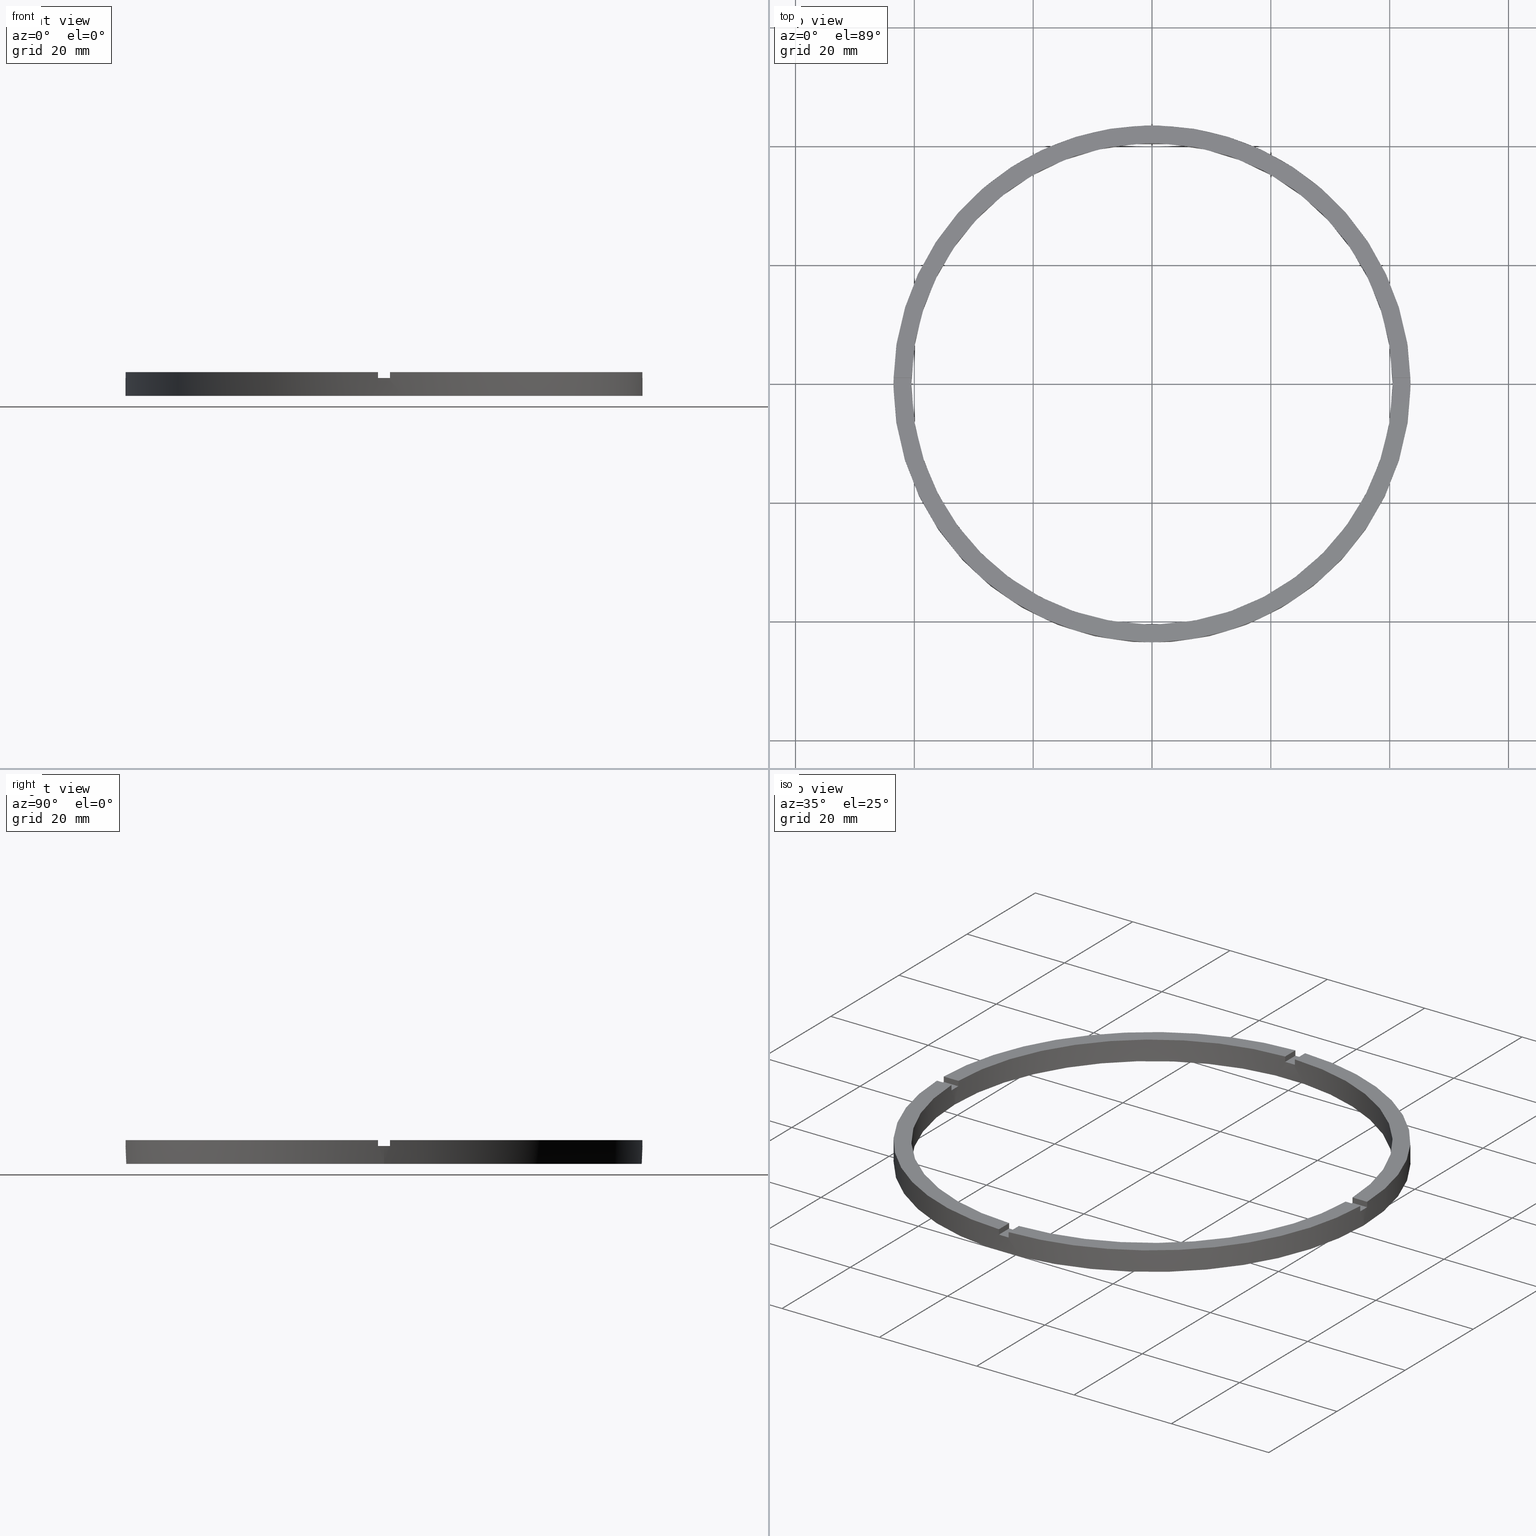
[diagram: canonical four-view strip — front | top / right | iso, engineering-drawing reading convention]
A machine part, canonical four-view strip (front | top / right | iso — engineering-drawing reading convention). The complete STEP part file that produces these views, byte-faithful:
ISO-10303-21;
HEADER;
FILE_DESCRIPTION (( 'STEP AP203' ),
    '1' );
FILE_NAME ('514178.step',
    '2024-12-26T02:45:09',
    ( 'MSI' ),
    ( '' ),
    'SwSTEP 2.0',
    'SolidWorks 2020',
    '' );
FILE_SCHEMA (( 'CONFIG_CONTROL_DESIGN' ));
ENDSEC;

DATA;
#1 = CC_DESIGN_PERSON_AND_ORGANIZATION_ASSIGNMENT ( #723, #753, ( #341 ) ) ;
#2 = VERTEX_POINT ( 'NONE', #589 ) ;
#3 = VERTEX_POINT ( 'NONE', #581 ) ;
#4 = AXIS2_PLACEMENT_3D ( 'NONE', #768, #617, #515 ) ;
#5 = ORIENTED_EDGE ( 'NONE', *, *, #720, .F. ) ;
#6 = AXIS2_PLACEMENT_3D ( 'NONE', #624, #363, #782 ) ;
#7 = ORIENTED_EDGE ( 'NONE', *, *, #412, .F. ) ;
#8 = VECTOR ( 'NONE', #370, 1000.000000000000000 ) ;
#9 = DIRECTION ( 'NONE',  ( -0.000000000000000000, -1.000000000000000000, -0.000000000000000000 ) ) ;
#10 = ORIENTED_EDGE ( 'NONE', *, *, #126, .T. ) ;
#11 = EDGE_LOOP ( 'NONE', ( #730, #518, #684, #202 ) ) ;
#12 = EDGE_CURVE ( 'NONE', #173, #679, #194, .T. ) ;
#13 = LINE ( 'NONE', #79, #299 ) ;
#14 = VECTOR ( 'NONE', #492, 1000.000000000000000 ) ;
#15 = EDGE_CURVE ( 'NONE', #661, #689, #206, .T. ) ;
#16 = DIRECTION ( 'NONE',  ( 0.000000000000000000, 0.000000000000000000, 1.000000000000000000 ) ) ;
#17 = DIRECTION ( 'NONE',  ( 1.000000000000000000, 0.000000000000000000, 0.000000000000000000 ) ) ;
#18 = CIRCLE ( 'NONE', #631, 43.50000000000000000 ) ;
#19 = VECTOR ( 'NONE', #681, 1000.000000000000000 ) ;
#20 = VECTOR ( 'NONE', #368, 1000.000000000000000 ) ;
#21 = PERSON_AND_ORGANIZATION_ROLE ( 'creator' ) ;
#22 = DIRECTION ( 'NONE',  ( 0.000000000000000000, -0.000000000000000000, 1.000000000000000000 ) ) ;
#23 = VECTOR ( 'NONE', #56, 1000.000000000000000 ) ;
#24 = EDGE_CURVE ( 'NONE', #188, #97, #232, .T. ) ;
#25 = DIRECTION ( 'NONE',  ( 0.000000000000000000, 0.000000000000000000, -1.000000000000000000 ) ) ;
#26 = CARTESIAN_POINT ( 'NONE',  ( 0.9999999999998412381, -40.48765243873742037, 3.000000000000000000 ) ) ;
#27 = LINE ( 'NONE', #687, #8 ) ;
#28 = ORIENTED_EDGE ( 'NONE', *, *, #487, .T. ) ;
#29 = CARTESIAN_POINT ( 'NONE',  ( 0.9999999999998404610, -33.50000000000017764, 3.000000000000000000 ) ) ;
#30 = VERTEX_POINT ( 'NONE', #120 ) ;
#31 = PERSON_AND_ORGANIZATION_ROLE ( 'creator' ) ;
#32 = CIRCLE ( 'NONE', #233, 40.50000000000000000 ) ;
#33 = ORIENTED_EDGE ( 'NONE', *, *, #12, .T. ) ;
#34 = CIRCLE ( 'NONE', #379, 43.50000000000000000 ) ;
#35 = CC_DESIGN_APPROVAL ( #208, ( #582 ) ) ;
#36 = CIRCLE ( 'NONE', #268, 40.50000000000000000 ) ;
#37 = ADVANCED_FACE ( 'NONE', ( #486 ), #658, .F. ) ;
#38 = ORIENTED_EDGE ( 'NONE', *, *, #60, .F. ) ;
#39 = LINE ( 'NONE', #609, #563 ) ;
#40 = VECTOR ( 'NONE', #644, 1000.000000000000000 ) ;
#41 = EDGE_LOOP ( 'NONE', ( #697, #53, #254, #594, #614, #590 ) ) ;
#42 = LINE ( 'NONE', #525, #305 ) ;
#43 = CARTESIAN_POINT ( 'NONE',  ( 0.000000000000000000, 0.000000000000000000, 0.000000000000000000 ) ) ;
#44 = LINE ( 'NONE', #709, #389 ) ;
#45 = DIRECTION ( 'NONE',  ( 1.000000000000000000, 0.000000000000000000, 0.000000000000000000 ) ) ;
#46 = LINE ( 'NONE', #583, #545 ) ;
#47 = CARTESIAN_POINT ( 'NONE',  ( 33.49999999999998579, 0.9999999999998430145, 3.000000000000000000 ) ) ;
#48 = FACE_OUTER_BOUND ( 'NONE', #511, .T. ) ;
#49 = ADVANCED_FACE ( 'NONE', ( #224, #227 ), #676, .F. ) ;
#50 = CIRCLE ( 'NONE', #464, 40.50000000000000000 ) ;
#51 = LINE ( 'NONE', #766, #328 ) ;
#52 = VERTEX_POINT ( 'NONE', #214 ) ;
#53 = ORIENTED_EDGE ( 'NONE', *, *, #110, .T. ) ;
#54 = VERTEX_POINT ( 'NONE', #109 ) ;
#55 = LINE ( 'NONE', #92, #71 ) ;
#56 = DIRECTION ( 'NONE',  ( 1.000000000000000000, 1.951563910473907735E-16, -0.000000000000000000 ) ) ;
#57 = CIRCLE ( 'NONE', #101, 40.50000000000000000 ) ;
#58 = PLANE ( 'NONE',  #548 ) ;
#59 = AXIS2_PLACEMENT_3D ( 'NONE', #291, #361, #306 ) ;
#60 = EDGE_CURVE ( 'NONE', #62, #340, #225, .T. ) ;
#61 = DIRECTION ( 'NONE',  ( 1.000000000000000000, 1.951563910473907735E-16, -0.000000000000000000 ) ) ;
#62 = VERTEX_POINT ( 'NONE', #165 ) ;
#63 = AXIS2_PLACEMENT_3D ( 'NONE', #395, #373, #69 ) ;
#64 = VECTOR ( 'NONE', #9, 1000.000000000000000 ) ;
#65 = CARTESIAN_POINT ( 'NONE',  ( 0.000000000000000000, 0.000000000000000000, 3.000000000000000000 ) ) ;
#66 = PRODUCT_DEFINITION_SHAPE ( 'NONE', 'NONE',  #257 ) ;
#67 = LINE ( 'NONE', #185, #319 ) ;
#68 = CARTESIAN_POINT ( 'NONE',  ( 0.9999999999999740208, 33.49999999999999289, 4.000000000000000000 ) ) ;
#69 = DIRECTION ( 'NONE',  ( 1.000000000000000000, 0.000000000000000000, 0.000000000000000000 ) ) ;
#70 = FACE_OUTER_BOUND ( 'NONE', #416, .T. ) ;
#71 = VECTOR ( 'NONE', #250, 1000.000000000000000 ) ;
#72 = EDGE_CURVE ( 'NONE', #157, #3, #228, .T. ) ;
#73 = ORIENTED_EDGE ( 'NONE', *, *, #72, .T. ) ;
#74 = DIRECTION ( 'NONE',  ( 1.000000000000000000, -0.000000000000000000, 0.000000000000000000 ) ) ;
#75 = VERTEX_POINT ( 'NONE', #597 ) ;
#76 = FACE_OUTER_BOUND ( 'NONE', #343, .T. ) ;
#77 = DIRECTION ( 'NONE',  ( 0.000000000000000000, 0.000000000000000000, 1.000000000000000000 ) ) ;
#78 = EDGE_CURVE ( 'NONE', #317, #54, #746, .T. ) ;
#79 = CARTESIAN_POINT ( 'NONE',  ( 33.49999999999998579, 0.9999999999998430145, 4.000000000000000000 ) ) ;
#80 = CARTESIAN_POINT ( 'NONE',  ( 0.000000000000000000, 0.000000000000000000, 4.000000000000000000 ) ) ;
#81 = ORIENTED_EDGE ( 'NONE', *, *, #130, .T. ) ;
#82 = ORIENTED_EDGE ( 'NONE', *, *, #398, .T. ) ;
#83 = EDGE_LOOP ( 'NONE', ( #346, #353, #181, #345 ) ) ;
#84 = VERTEX_POINT ( 'NONE', #111 ) ;
#85 = ORIENTED_EDGE ( 'NONE', *, *, #422, .F. ) ;
#86 = ORIENTED_EDGE ( 'NONE', *, *, #436, .F. ) ;
#87 = EDGE_LOOP ( 'NONE', ( #85, #271, #261, #507 ) ) ;
#88 = ORIENTED_EDGE ( 'NONE', *, *, #110, .F. ) ;
#89 = EDGE_CURVE ( 'NONE', #188, #2, #742, .T. ) ;
#90 = VERTEX_POINT ( 'NONE', #115 ) ;
#91 = ADVANCED_FACE ( 'NONE', ( #744 ), #150, .T. ) ;
#92 = CARTESIAN_POINT ( 'NONE',  ( 43.48850422812906658, 0.9999999999998436806, 4.000000000000000000 ) ) ;
#93 = ORIENTED_EDGE ( 'NONE', *, *, #654, .T. ) ;
#94 = ORIENTED_EDGE ( 'NONE', *, *, #491, .F. ) ;
#95 = DIRECTION ( 'NONE',  ( 1.000000000000000000, 0.000000000000000000, 0.000000000000000000 ) ) ;
#96 = VERTEX_POINT ( 'NONE', #153 ) ;
#97 = VERTEX_POINT ( 'NONE', #503 ) ;
#98 = AXIS2_PLACEMENT_3D ( 'NONE', #388, #635, #751 ) ;
#99 = ORIENTED_EDGE ( 'NONE', *, *, #761, .T. ) ;
#100 = PERSON_AND_ORGANIZATION_ROLE ( 'design_supplier' ) ;
#101 = AXIS2_PLACEMENT_3D ( 'NONE', #553, #630, #95 ) ;
#102 = AXIS2_PLACEMENT_3D ( 'NONE', #401, #465, #693 ) ;
#103 = CARTESIAN_POINT ( 'NONE',  ( 0.000000000000000000, 0.000000000000000000, 4.000000000000000000 ) ) ;
#104 = CARTESIAN_POINT ( 'NONE',  ( -1.000000000000158318, -43.48850422812905947, 4.000000000000000000 ) ) ;
#105 = DIRECTION ( 'NONE',  ( -1.301042606982605074E-16, 1.000000000000000000, -0.000000000000000000 ) ) ;
#106 = DIRECTION ( 'NONE',  ( -0.000000000000000000, -0.000000000000000000, -1.000000000000000000 ) ) ;
#107 = CARTESIAN_POINT ( 'NONE',  ( 0.000000000000000000, 0.000000000000000000, 4.000000000000000000 ) ) ;
#108 = EDGE_CURVE ( 'NONE', #90, #613, #46, .T. ) ;
#109 = CARTESIAN_POINT ( 'NONE',  ( -1.000000000000158762, -40.48765243873741326, 4.000000000000000000 ) ) ;
#110 = EDGE_CURVE ( 'NONE', #425, #737, #18, .T. ) ;
#111 = CARTESIAN_POINT ( 'NONE',  ( -1.000000000000025979, 40.48765243873741326, 4.000000000000000000 ) ) ;
#112 = PLANE ( 'NONE',  #649 ) ;
#113 = CARTESIAN_POINT ( 'NONE',  ( 0.000000000000000000, 0.000000000000000000, 0.000000000000000000 ) ) ;
#114 = CC_DESIGN_SECURITY_CLASSIFICATION ( #582, ( #413 ) ) ;
#115 = CARTESIAN_POINT ( 'NONE',  ( 40.48765243873741326, -1.000000000000156541, 3.000000000000000000 ) ) ;
#116 = CARTESIAN_POINT ( 'NONE',  ( 0.000000000000000000, 0.000000000000000000, 0.000000000000000000 ) ) ;
#117 = ADVANCED_FACE ( 'NONE', ( #307 ), #293, .F. ) ;
#118 = EDGE_CURVE ( 'NONE', #585, #96, #296, .T. ) ;
#119 = CARTESIAN_POINT ( 'NONE',  ( -43.48850422812906658, -1.000000000000029532, 3.000000000000000000 ) ) ;
#120 = CARTESIAN_POINT ( 'NONE',  ( 43.48850422812905947, -1.000000000000156319, 4.000000000000000000 ) ) ;
#121 = CARTESIAN_POINT ( 'NONE',  ( -33.50000000000018474, -1.000000000000027534, 3.000000000000000000 ) ) ;
#122 = CARTESIAN_POINT ( 'NONE',  ( 0.000000000000000000, 0.000000000000000000, 4.000000000000000000 ) ) ;
#123 = AXIS2_PLACEMENT_3D ( 'NONE', #578, #143, #606 ) ;
#124 = DIRECTION ( 'NONE',  ( 1.000000000000000000, 0.000000000000000000, 0.000000000000000000 ) ) ;
#125 = DIRECTION ( 'NONE',  ( -1.000000000000000000, -1.301042606982605074E-16, 0.000000000000000000 ) ) ;
#126 = EDGE_CURVE ( 'NONE', #428, #54, #32, .T. ) ;
#127 = FACE_OUTER_BOUND ( 'NONE', #729, .T. ) ;
#128 = CARTESIAN_POINT ( 'NONE',  ( 0.9999999999999740208, 40.48765243873742037, 4.000000000000000000 ) ) ;
#129 = CIRCLE ( 'NONE', #63, 43.50000000000000000 ) ;
#130 = EDGE_CURVE ( 'NONE', #75, #470, #552, .T. ) ;
#131 = DIRECTION ( 'NONE',  ( -0.000000000000000000, -0.000000000000000000, -1.000000000000000000 ) ) ;
#132 = CC_DESIGN_APPROVAL ( #381, ( #413 ) ) ;
#133 = EDGE_CURVE ( 'NONE', #84, #340, #564, .T. ) ;
#134 = PERSON_AND_ORGANIZATION_ROLE ( 'classification_officer' ) ;
#135 = CC_DESIGN_APPROVAL ( #285, ( #257 ) ) ;
#136 = DIRECTION ( 'NONE',  ( 0.000000000000000000, 0.000000000000000000, 1.000000000000000000 ) ) ;
#137 = AXIS2_PLACEMENT_3D ( 'NONE', #411, #471, #628 ) ;
#138 = AXIS2_PLACEMENT_3D ( 'NONE', #476, #362, #610 ) ;
#139 = CARTESIAN_POINT ( 'NONE',  ( -40.48765243873742037, 0.9999999999999711342, 4.000000000000000000 ) ) ;
#140 = CARTESIAN_POINT ( 'NONE',  ( 0.000000000000000000, 0.000000000000000000, 4.000000000000000000 ) ) ;
#141 = CARTESIAN_POINT ( 'NONE',  ( 33.49999999999998579, -1.000000000000156986, 4.000000000000000000 ) ) ;
#142 = DIRECTION ( 'NONE',  ( 0.000000000000000000, 0.000000000000000000, 1.000000000000000000 ) ) ;
#143 = DIRECTION ( 'NONE',  ( 0.000000000000000000, 0.000000000000000000, 1.000000000000000000 ) ) ;
#144 = AXIS2_PLACEMENT_3D ( 'NONE', #637, #646, #385 ) ;
#145 = PLANE ( 'NONE',  #348 ) ;
#146 = DIRECTION ( 'NONE',  ( 1.000000000000000000, 0.000000000000000000, 0.000000000000000000 ) ) ;
#147 = CARTESIAN_POINT ( 'NONE',  ( 0.000000000000000000, 0.000000000000000000, 4.000000000000000000 ) ) ;
#148 = LINE ( 'NONE', #308, #458 ) ;
#149 = CARTESIAN_POINT ( 'NONE',  ( 43.48850422812906658, 0.9999999999998436806, 4.000000000000000000 ) ) ;
#150 = PLANE ( 'NONE',  #144 ) ;
#151 = DIRECTION ( 'NONE',  ( 0.000000000000000000, 0.000000000000000000, 1.000000000000000000 ) ) ;
#152 = CARTESIAN_POINT ( 'NONE',  ( 33.49999999999998579, -1.000000000000156986, 3.000000000000000000 ) ) ;
#153 = CARTESIAN_POINT ( 'NONE',  ( 40.50000000000000000, 4.959819536546780600E-15, 0.000000000000000000 ) ) ;
#154 = DIRECTION ( 'NONE',  ( 1.000000000000000000, 0.000000000000000000, 0.000000000000000000 ) ) ;
#155 = ADVANCED_FACE ( 'NONE', ( #550 ), #58, .T. ) ;
#156 = EDGE_LOOP ( 'NONE', ( #419, #452 ) ) ;
#157 = VERTEX_POINT ( 'NONE', #776 ) ;
#158 = ORIENTED_EDGE ( 'NONE', *, *, #670, .T. ) ;
#159 = EDGE_CURVE ( 'NONE', #565, #163, #50, .T. ) ;
#160 = ORIENTED_EDGE ( 'NONE', *, *, #761, .F. ) ;
#161 = DIRECTION ( 'NONE',  ( 1.000000000000000000, 0.000000000000000000, 0.000000000000000000 ) ) ;
#162 = DIRECTION ( 'NONE',  ( -0.000000000000000000, -0.000000000000000000, -1.000000000000000000 ) ) ;
#163 = VERTEX_POINT ( 'NONE', #245 ) ;
#164 = VECTOR ( 'NONE', #142, 1000.000000000000000 ) ;
#165 = CARTESIAN_POINT ( 'NONE',  ( 0.9999999999999740208, 40.48765243873742037, 3.000000000000000000 ) ) ;
#166 = DIRECTION ( 'NONE',  ( 1.000000000000000000, 0.000000000000000000, -0.000000000000000000 ) ) ;
#167 = CARTESIAN_POINT ( 'NONE',  ( -1.000000000000158318, -43.48850422812905947, 3.000000000000000000 ) ) ;
#168 = APPROVAL_DATE_TIME ( #686, #285 ) ;
#169 = ORIENTED_EDGE ( 'NONE', *, *, #619, .T. ) ;
#170 = VECTOR ( 'NONE', #640, 1000.000000000000000 ) ;
#171 = ORIENTED_EDGE ( 'NONE', *, *, #662, .F. ) ;
#172 = CALENDAR_DATE ( 2024, 26, 12 ) ;
#173 = VERTEX_POINT ( 'NONE', #406 ) ;
#174 = LINE ( 'NONE', #104, #164 ) ;
#175 = PLANE ( 'NONE',  #397 ) ;
#176 = ORIENTED_EDGE ( 'NONE', *, *, #78, .T. ) ;
#177 = EDGE_CURVE ( 'NONE', #334, #157, #13, .T. ) ;
#178 = AXIS2_PLACEMENT_3D ( 'NONE', #536, #621, #652 ) ;
#179 = ORIENTED_EDGE ( 'NONE', *, *, #288, .F. ) ;
#180 = CYLINDRICAL_SURFACE ( 'NONE', #215, 40.50000000000000000 ) ;
#181 = ORIENTED_EDGE ( 'NONE', *, *, #269, .F. ) ;
#182 = PERSON_AND_ORGANIZATION ( #747, #424 ) ;
#183 = ORIENTED_EDGE ( 'NONE', *, *, #333, .F. ) ;
#184 = FACE_OUTER_BOUND ( 'NONE', #539, .T. ) ;
#185 = CARTESIAN_POINT ( 'NONE',  ( -40.50000000000000000, 0.000000000000000000, 4.000000000000000000 ) ) ;
#186 = ORIENTED_EDGE ( 'NONE', *, *, #422, .T. ) ;
#187 = ORIENTED_EDGE ( 'NONE', *, *, #24, .T. ) ;
#188 = VERTEX_POINT ( 'NONE', #544 ) ;
#189 = ORIENTED_EDGE ( 'NONE', *, *, #663, .T. ) ;
#190 = LOCAL_TIME ( 10, 45, 9.000000000000000000, #706 ) ;
#191 = EDGE_CURVE ( 'NONE', #84, #689, #560, .T. ) ;
#192 = ORIENTED_EDGE ( 'NONE', *, *, #265, .T. ) ;
#193 = VERTEX_POINT ( 'NONE', #479 ) ;
#194 = LINE ( 'NONE', #29, #731 ) ;
#195 = PERSON_AND_ORGANIZATION ( #747, #424 ) ;
#196 = DIRECTION ( 'NONE',  ( 0.000000000000000000, 0.000000000000000000, 1.000000000000000000 ) ) ;
#197 = FACE_OUTER_BOUND ( 'NONE', #87, .T. ) ;
#198 = ORIENTED_EDGE ( 'NONE', *, *, #366, .F. ) ;
#199 = FACE_OUTER_BOUND ( 'NONE', #364, .T. ) ;
#200 = CARTESIAN_POINT ( 'NONE',  ( -40.48765243873742037, 0.9999999999999711342, 4.000000000000000000 ) ) ;
#201 = VECTOR ( 'NONE', #335, 1000.000000000000000 ) ;
#202 = ORIENTED_EDGE ( 'NONE', *, *, #436, .T. ) ;
#203 = LINE ( 'NONE', #427, #170 ) ;
#204 = CIRCLE ( 'NONE', #642, 43.50000000000000000 ) ;
#205 = ORIENTED_EDGE ( 'NONE', *, *, #356, .T. ) ;
#206 = LINE ( 'NONE', #139, #483 ) ;
#207 = CIRCLE ( 'NONE', #650, 40.50000000000000000 ) ;
#208 = APPROVAL ( #383, 'δָ��' ) ;
#209 = DIRECTION ( 'NONE',  ( 1.000000000000000000, 0.000000000000000000, 0.000000000000000000 ) ) ;
#210 = PERSON_AND_ORGANIZATION ( #747, #424 ) ;
#211 = DIRECTION ( 'NONE',  ( 0.000000000000000000, 0.000000000000000000, 1.000000000000000000 ) ) ;
#212 = COORDINATED_UNIVERSAL_TIME_OFFSET ( 8, 0, .AHEAD. ) ;
#213 = EDGE_CURVE ( 'NONE', #585, #3, #36, .T. ) ;
#214 = CARTESIAN_POINT ( 'NONE',  ( -43.48850422812906658, 0.9999999999999705791, 3.000000000000000000 ) ) ;
#215 = AXIS2_PLACEMENT_3D ( 'NONE', #517, #748, #678 ) ;
#216 = ORIENTED_EDGE ( 'NONE', *, *, #177, .F. ) ;
#217 = CIRCLE ( 'NONE', #551, 43.50000000000000000 ) ;
#218 = ORIENTED_EDGE ( 'NONE', *, *, #72, .F. ) ;
#219 = CARTESIAN_POINT ( 'NONE',  ( 40.50000000000000000, 4.959819536546780600E-15, 4.000000000000000000 ) ) ;
#220 = APPROVAL_ROLE ( '' ) ;
#221 = ORIENTED_EDGE ( 'NONE', *, *, #735, .F. ) ;
#222 = DATE_AND_TIME ( #241, #490 ) ;
#223 = CARTESIAN_POINT ( 'NONE',  ( 40.50000000000000000, 4.959819536546780600E-15, 3.000000000000000000 ) ) ;
#224 = FACE_OUTER_BOUND ( 'NONE', #331, .T. ) ;
#225 = CIRCLE ( 'NONE', #309, 40.50000000000000000 ) ;
#226 = CARTESIAN_POINT ( 'NONE',  ( 0.9999999999998416822, -43.48850422812906658, 4.000000000000000000 ) ) ;
#227 = FACE_BOUND ( 'NONE', #156, .T. ) ;
#228 = LINE ( 'NONE', #672, #485 ) ;
#229 = CALENDAR_DATE ( 2024, 26, 12 ) ;
#230 = VECTOR ( 'NONE', #516, 1000.000000000000000 ) ;
#231 = CARTESIAN_POINT ( 'NONE',  ( 40.48765243873741326, -1.000000000000156541, 4.000000000000000000 ) ) ;
#232 = CIRCLE ( 'NONE', #760, 43.50000000000000000 ) ;
#233 = AXIS2_PLACEMENT_3D ( 'NONE', #140, #692, #209 ) ;
#234 = EDGE_CURVE ( 'NONE', #338, #30, #567, .T. ) ;
#235 = PERSON_AND_ORGANIZATION ( #747, #424 ) ;
#236 = DIRECTION ( 'NONE',  ( 1.000000000000000000, 6.505213034913025371E-17, 0.000000000000000000 ) ) ;
#237 = CARTESIAN_POINT ( 'NONE',  ( 0.000000000000000000, 0.000000000000000000, 3.000000000000000000 ) ) ;
#238 = CARTESIAN_POINT ( 'NONE',  ( -43.50000000000000000, 0.000000000000000000, 4.000000000000000000 ) ) ;
#239 = LOCAL_TIME ( 10, 45, 9.000000000000000000, #755 ) ;
#240 = ADVANCED_FACE ( 'NONE', ( #48 ), #284, .F. ) ;
#241 = CALENDAR_DATE ( 2024, 26, 12 ) ;
#242 = CARTESIAN_POINT ( 'NONE',  ( 0.9999999999999740208, 33.49999999999999289, 3.000000000000000000 ) ) ;
#243 = EDGE_CURVE ( 'NONE', #62, #699, #542, .T. ) ;
#244 = DIRECTION ( 'NONE',  ( 0.000000000000000000, 1.000000000000000000, 0.000000000000000000 ) ) ;
#245 = CARTESIAN_POINT ( 'NONE',  ( 40.48765243873741326, -1.000000000000156541, 4.000000000000000000 ) ) ;
#246 = CARTESIAN_POINT ( 'NONE',  ( -33.50000000000018474, 0.9999999999999724665, 3.000000000000000000 ) ) ;
#247 = DIRECTION ( 'NONE',  ( 0.000000000000000000, -0.000000000000000000, 1.000000000000000000 ) ) ;
#248 = ORIENTED_EDGE ( 'NONE', *, *, #12, .F. ) ;
#249 = ADVANCED_FACE ( 'NONE', ( #287 ), #175, .F. ) ;
#250 = DIRECTION ( 'NONE',  ( -0.000000000000000000, -0.000000000000000000, -1.000000000000000000 ) ) ;
#251 = VERTEX_POINT ( 'NONE', #664 ) ;
#252 = DIRECTION ( 'NONE',  ( 1.000000000000000000, 0.000000000000000000, 0.000000000000000000 ) ) ;
#253 = ORIENTED_EDGE ( 'NONE', *, *, #378, .F. ) ;
#254 = ORIENTED_EDGE ( 'NONE', *, *, #557, .T. ) ;
#255 = EDGE_LOOP ( 'NONE', ( #322, #501, #314, #574 ) ) ;
#256 = DIRECTION ( 'NONE',  ( -1.000000000000000000, 0.000000000000000000, 0.000000000000000000 ) ) ;
#257 = PRODUCT_DEFINITION ( 'δ֪', '', #413, #577 ) ;
#258 = ORIENTED_EDGE ( 'NONE', *, *, #626, .T. ) ;
#259 = CARTESIAN_POINT ( 'NONE',  ( -33.50000000000018474, -1.000000000000027534, 3.000000000000000000 ) ) ;
#260 = ORIENTED_EDGE ( 'NONE', *, *, #665, .F. ) ;
#261 = ORIENTED_EDGE ( 'NONE', *, *, #720, .T. ) ;
#262 = ORIENTED_EDGE ( 'NONE', *, *, #557, .F. ) ;
#263 = DIRECTION ( 'NONE',  ( 1.000000000000000000, 0.000000000000000000, 0.000000000000000000 ) ) ;
#264 = ORIENTED_EDGE ( 'NONE', *, *, #191, .T. ) ;
#265 = EDGE_CURVE ( 'NONE', #777, #453, #57, .T. ) ;
#266 = ORIENTED_EDGE ( 'NONE', *, *, #15, .F. ) ;
#267 = APPLICATION_PROTOCOL_DEFINITION ( 'international standard', 'config_control_design', 1994, #668 ) ;
#268 = AXIS2_PLACEMENT_3D ( 'NONE', #623, #659, #304 ) ;
#269 = EDGE_CURVE ( 'NONE', #2, #340, #313, .T. ) ;
#270 = ORIENTED_EDGE ( 'NONE', *, *, #357, .T. ) ;
#271 = ORIENTED_EDGE ( 'NONE', *, *, #15, .T. ) ;
#272 = UNCERTAINTY_MEASURE_WITH_UNIT (LENGTH_MEASURE( 1.000000000000000082E-05 ), #573, 'distance_accuracy_value', 'NONE');
#273 = ORIENTED_EDGE ( 'NONE', *, *, #398, .F. ) ;
#274 = ORIENTED_EDGE ( 'NONE', *, *, #213, .T. ) ;
#275 = DIRECTION ( 'NONE',  ( 0.000000000000000000, 0.000000000000000000, 1.000000000000000000 ) ) ;
#276 = ORIENTED_EDGE ( 'NONE', *, *, #404, .T. ) ;
#277 = EDGE_LOOP ( 'NONE', ( #354, #33, #580, #499 ) ) ;
#278 = EDGE_CURVE ( 'NONE', #777, #193, #67, .T. ) ;
#279 = ORIENTED_EDGE ( 'NONE', *, *, #522, .F. ) ;
#280 = PLANE ( 'NONE',  #671 ) ;
#281 =( NAMED_UNIT ( * ) PLANE_ANGLE_UNIT ( ) SI_UNIT ( $, .RADIAN. ) );
#282 = ORIENTED_EDGE ( 'NONE', *, *, #670, .F. ) ;
#283 = LINE ( 'NONE', #615, #19 ) ;
#284 = CYLINDRICAL_SURFACE ( 'NONE', #669, 40.50000000000000000 ) ;
#285 = APPROVAL ( #667, 'δָ��' ) ;
#286 = SECURITY_CLASSIFICATION_LEVEL ( 'unclassified' ) ;
#287 = FACE_OUTER_BOUND ( 'NONE', #607, .T. ) ;
#288 = EDGE_CURVE ( 'NONE', #327, #470, #579, .T. ) ;
#289 = DIRECTION ( 'NONE',  ( 1.000000000000000000, 0.000000000000000000, -0.000000000000000000 ) ) ;
#290 = AXIS2_PLACEMENT_3D ( 'NONE', #113, #743, #17 ) ;
#291 = CARTESIAN_POINT ( 'NONE',  ( 0.000000000000000000, 0.000000000000000000, 4.000000000000000000 ) ) ;
#292 = FACE_OUTER_BOUND ( 'NONE', #509, .T. ) ;
#293 = PLANE ( 'NONE',  #648 ) ;
#294 = DIRECTION ( 'NONE',  ( 0.000000000000000000, 0.000000000000000000, 1.000000000000000000 ) ) ;
#295 = DIRECTION ( 'NONE',  ( -0.000000000000000000, 0.000000000000000000, 1.000000000000000000 ) ) ;
#296 = LINE ( 'NONE', #219, #20 ) ;
#297 = CARTESIAN_POINT ( 'NONE',  ( 0.9999999999999740208, 43.48850422812906658, 4.000000000000000000 ) ) ;
#298 = EDGE_LOOP ( 'NONE', ( #93, #774, #38, #586 ) ) ;
#299 = VECTOR ( 'NONE', #540, 1000.000000000000000 ) ;
#300 = LINE ( 'NONE', #242, #555 ) ;
#301 = VECTOR ( 'NONE', #294, 1000.000000000000000 ) ;
#302 = DIRECTION ( 'NONE',  ( -1.000000000000000000, 0.000000000000000000, 0.000000000000000000 ) ) ;
#303 = CIRCLE ( 'NONE', #351, 40.50000000000000000 ) ;
#304 = DIRECTION ( 'NONE',  ( 1.000000000000000000, 0.000000000000000000, 0.000000000000000000 ) ) ;
#305 = VECTOR ( 'NONE', #162, 1000.000000000000000 ) ;
#306 = DIRECTION ( 'NONE',  ( -1.000000000000000000, 0.000000000000000000, 0.000000000000000000 ) ) ;
#307 = FACE_OUTER_BOUND ( 'NONE', #83, .T. ) ;
#308 = CARTESIAN_POINT ( 'NONE',  ( -43.48850422812906658, 0.9999999999999705791, 4.000000000000000000 ) ) ;
#309 = AXIS2_PLACEMENT_3D ( 'NONE', #716, #247, #124 ) ;
#310 = CYLINDRICAL_SURFACE ( 'NONE', #754, 43.50000000000000000 ) ;
#311 = DIRECTION ( 'NONE',  ( 0.000000000000000000, 0.000000000000000000, 1.000000000000000000 ) ) ;
#312 = EDGE_CURVE ( 'NONE', #334, #737, #55, .T. ) ;
#313 = LINE ( 'NONE', #734, #64 ) ;
#314 = ORIENTED_EDGE ( 'NONE', *, *, #333, .T. ) ;
#315 = VECTOR ( 'NONE', #402, 1000.000000000000000 ) ;
#316 = CARTESIAN_POINT ( 'NONE',  ( -33.50000000000018474, -1.000000000000027534, 4.000000000000000000 ) ) ;
#317 = VERTEX_POINT ( 'NONE', #376 ) ;
#318 = VECTOR ( 'NONE', #475, 1000.000000000000000 ) ;
#319 = VECTOR ( 'NONE', #131, 1000.000000000000000 ) ;
#320 = DIRECTION ( 'NONE',  ( 1.951563910473907735E-16, -1.000000000000000000, 0.000000000000000000 ) ) ;
#321 = ORIENTED_EDGE ( 'NONE', *, *, #393, .T. ) ;
#322 = ORIENTED_EDGE ( 'NONE', *, *, #382, .F. ) ;
#323 = EDGE_CURVE ( 'NONE', #317, #679, #325, .T. ) ;
#324 = EDGE_LOOP ( 'NONE', ( #160, #704, #514, #473 ) ) ;
#325 = CIRCLE ( 'NONE', #377, 40.50000000000000000 ) ;
#326 = ORIENTED_EDGE ( 'NONE', *, *, #60, .T. ) ;
#327 = VERTEX_POINT ( 'NONE', #484 ) ;
#328 = VECTOR ( 'NONE', #408, 1000.000000000000000 ) ;
#329 = CYLINDRICAL_SURFACE ( 'NONE', #59, 43.50000000000000000 ) ;
#330 = PRODUCT_RELATED_PRODUCT_CATEGORY ( 'detail', '', ( #341 ) ) ;
#331 = EDGE_LOOP ( 'NONE', ( #457, #708 ) ) ;
#332 = FACE_OUTER_BOUND ( 'NONE', #695, .T. ) ;
#333 = EDGE_CURVE ( 'NONE', #699, #505, #587, .T. ) ;
#334 = VERTEX_POINT ( 'NONE', #149 ) ;
#335 = DIRECTION ( 'NONE',  ( 1.301042606982605074E-16, -1.000000000000000000, 0.000000000000000000 ) ) ;
#336 = DATE_TIME_ROLE ( 'creation_date' ) ;
#337 = ORIENTED_EDGE ( 'NONE', *, *, #415, .T. ) ;
#338 = VERTEX_POINT ( 'NONE', #226 ) ;
#339 = AXIS2_PLACEMENT_3D ( 'NONE', #675, #16, #593 ) ;
#340 = VERTEX_POINT ( 'NONE', #394 ) ;
#341 = PRODUCT ( '514178', '514178', '', ( #633 ) ) ;
#342 = VERTEX_POINT ( 'NONE', #167 ) ;
#343 = EDGE_LOOP ( 'NONE', ( #529, #176, #28, #260 ) ) ;
#344 = ORIENTED_EDGE ( 'NONE', *, *, #549, .T. ) ;
#345 = ORIENTED_EDGE ( 'NONE', *, *, #89, .F. ) ;
#346 = ORIENTED_EDGE ( 'NONE', *, *, #508, .T. ) ;
#347 = DIRECTION ( 'NONE',  ( 1.000000000000000000, 6.505213034913025371E-17, 0.000000000000000000 ) ) ;
#348 = AXIS2_PLACEMENT_3D ( 'NONE', #103, #211, #504 ) ;
#349 = ORIENTED_EDGE ( 'NONE', *, *, #366, .T. ) ;
#350 = DIRECTION ( 'NONE',  ( 1.000000000000000000, 0.000000000000000000, 0.000000000000000000 ) ) ;
#351 = AXIS2_PLACEMENT_3D ( 'NONE', #541, #618, #460 ) ;
#352 = DIRECTION ( 'NONE',  ( 1.000000000000000000, 0.000000000000000000, 0.000000000000000000 ) ) ;
#353 = ORIENTED_EDGE ( 'NONE', *, *, #133, .T. ) ;
#354 = ORIENTED_EDGE ( 'NONE', *, *, #570, .T. ) ;
#355 = ADVANCED_FACE ( 'NONE', ( #70 ), #329, .T. ) ;
#356 = EDGE_CURVE ( 'NONE', #428, #453, #575, .T. ) ;
#357 = EDGE_CURVE ( 'NONE', #558, #505, #51, .T. ) ;
#358 = DATE_TIME_ROLE ( 'classification_date' ) ;
#360 = DIRECTION ( 'NONE',  ( 0.000000000000000000, -0.000000000000000000, 1.000000000000000000 ) ) ;
#359 = PLANE ( 'NONE',  #571 ) ;
#361 = DIRECTION ( 'NONE',  ( -0.000000000000000000, -0.000000000000000000, -1.000000000000000000 ) ) ;
#362 = DIRECTION ( 'NONE',  ( 0.000000000000000000, 0.000000000000000000, 1.000000000000000000 ) ) ;
#363 = DIRECTION ( 'NONE',  ( -6.505213034913025371E-17, 1.000000000000000000, 0.000000000000000000 ) ) ;
#364 = EDGE_LOOP ( 'NONE', ( #183, #282, #216, #258 ) ) ;
#365 = CARTESIAN_POINT ( 'NONE',  ( 0.9999999999998412381, -40.48765243873742037, 4.000000000000000000 ) ) ;
#366 = EDGE_CURVE ( 'NONE', #565, #679, #595, .T. ) ;
#367 = ADVANCED_FACE ( 'NONE', ( #76 ), #718, .F. ) ;
#368 = DIRECTION ( 'NONE',  ( -0.000000000000000000, -0.000000000000000000, -1.000000000000000000 ) ) ;
#369 = DIRECTION ( 'NONE',  ( 0.000000000000000000, 0.000000000000000000, 1.000000000000000000 ) ) ;
#370 = DIRECTION ( 'NONE',  ( -0.000000000000000000, -1.000000000000000000, -0.000000000000000000 ) ) ;
#371 = CARTESIAN_POINT ( 'NONE',  ( 0.000000000000000000, 0.000000000000000000, 4.000000000000000000 ) ) ;
#372 = DIRECTION ( 'NONE',  ( -0.000000000000000000, -0.000000000000000000, -1.000000000000000000 ) ) ;
#373 = DIRECTION ( 'NONE',  ( 0.000000000000000000, 0.000000000000000000, 1.000000000000000000 ) ) ;
#374 = CARTESIAN_POINT ( 'NONE',  ( 0.000000000000000000, 0.000000000000000000, 4.000000000000000000 ) ) ;
#375 = ADVANCED_FACE ( 'NONE', ( #332 ), #310, .T. ) ;
#376 = CARTESIAN_POINT ( 'NONE',  ( -1.000000000000158762, -40.48765243873741326, 3.000000000000000000 ) ) ;
#377 = AXIS2_PLACEMENT_3D ( 'NONE', #538, #690, #700 ) ;
#378 = EDGE_CURVE ( 'NONE', #613, #30, #39, .T. ) ;
#379 = AXIS2_PLACEMENT_3D ( 'NONE', #116, #605, #154 ) ;
#380 = ADVANCED_FACE ( 'NONE', ( #554 ), #616, .F. ) ;
#381 = APPROVAL ( #643, 'δָ��' ) ;
#382 = EDGE_CURVE ( 'NONE', #62, #558, #300, .T. ) ;
#383 = APPROVAL_STATUS ( 'not_yet_approved' ) ;
#384 = DIRECTION ( 'NONE',  ( 0.000000000000000000, 0.000000000000000000, 1.000000000000000000 ) ) ;
#385 = DIRECTION ( 'NONE',  ( 1.000000000000000000, 0.000000000000000000, -0.000000000000000000 ) ) ;
#386 = APPROVAL_ROLE ( '' ) ;
#387 = DIRECTION ( 'NONE',  ( -0.000000000000000000, -0.000000000000000000, -1.000000000000000000 ) ) ;
#388 = CARTESIAN_POINT ( 'NONE',  ( 0.9999999999998404610, -33.50000000000017764, 3.000000000000000000 ) ) ;
#389 = VECTOR ( 'NONE', #651, 1000.000000000000000 ) ;
#390 = DIRECTION ( 'NONE',  ( 1.301042606982605074E-16, -1.000000000000000000, 0.000000000000000000 ) ) ;
#391 = CARTESIAN_POINT ( 'NONE',  ( -33.50000000000018474, 0.9999999999999724665, 3.000000000000000000 ) ) ;
#392 = APPLICATION_CONTEXT ( 'configuration controlled 3d designs of mechanical parts and assemblies' ) ;
#393 = EDGE_CURVE ( 'NONE', #661, #777, #303, .T. ) ;
#394 = CARTESIAN_POINT ( 'NONE',  ( -1.000000000000025979, 40.48765243873741326, 3.000000000000000000 ) ) ;
#395 = CARTESIAN_POINT ( 'NONE',  ( 0.000000000000000000, 0.000000000000000000, 4.000000000000000000 ) ) ;
#396 = CARTESIAN_POINT ( 'NONE',  ( -1.000000000000025979, 33.49999999999999289, 3.000000000000000000 ) ) ;
#397 = AXIS2_PLACEMENT_3D ( 'NONE', #259, #320, #414 ) ;
#398 = EDGE_CURVE ( 'NONE', #425, #572, #42, .T. ) ;
#399 = CARTESIAN_POINT ( 'NONE',  ( 0.9999999999999740208, 43.48850422812906658, 3.000000000000000000 ) ) ;
#400 = DIRECTION ( 'NONE',  ( 0.000000000000000000, 0.000000000000000000, 1.000000000000000000 ) ) ;
#401 = CARTESIAN_POINT ( 'NONE',  ( 0.000000000000000000, 0.000000000000000000, 3.000000000000000000 ) ) ;
#402 = DIRECTION ( 'NONE',  ( -0.000000000000000000, -0.000000000000000000, -1.000000000000000000 ) ) ;
#403 = CARTESIAN_POINT ( 'NONE',  ( 43.48850422812905947, -1.000000000000156319, 3.000000000000000000 ) ) ;
#404 = EDGE_CURVE ( 'NONE', #75, #251, #559, .T. ) ;
#405 = EDGE_CURVE ( 'NONE', #52, #75, #481, .T. ) ;
#406 = CARTESIAN_POINT ( 'NONE',  ( 0.9999999999998416822, -43.48850422812906658, 3.000000000000000000 ) ) ;
#407 = CARTESIAN_POINT ( 'NONE',  ( -40.48765243873741326, -1.000000000000028866, 4.000000000000000000 ) ) ;
#408 = DIRECTION ( 'NONE',  ( 0.000000000000000000, 0.000000000000000000, 1.000000000000000000 ) ) ;
#409 = CC_DESIGN_DATE_AND_TIME_ASSIGNMENT ( #733, #358, ( #582 ) ) ;
#410 = PLANE ( 'NONE',  #138 ) ;
#411 = CARTESIAN_POINT ( 'NONE',  ( 0.000000000000000000, 0.000000000000000000, 4.000000000000000000 ) ) ;
#412 = EDGE_CURVE ( 'NONE', #193, #96, #207, .T. ) ;
#413 = PRODUCT_DEFINITION_FORMATION_WITH_SPECIFIED_SOURCE ( '�κ�', '', #341, .NOT_KNOWN. ) ;
#414 = DIRECTION ( 'NONE',  ( 1.000000000000000000, 1.951563910473907735E-16, 0.000000000000000000 ) ) ;
#415 = EDGE_CURVE ( 'NONE', #327, #428, #745, .T. ) ;
#416 = EDGE_LOOP ( 'NONE', ( #273, #221, #763, #477, #712, #467, #434, #86, #531, #438, #276, #189 ) ) ;
#417 = AXIS2_PLACEMENT_3D ( 'NONE', #757, #680, #45 ) ;
#418 = CARTESIAN_POINT ( 'NONE',  ( -43.48850422812906658, -1.000000000000029532, 4.000000000000000000 ) ) ;
#419 = ORIENTED_EDGE ( 'NONE', *, *, #412, .T. ) ;
#420 =( NAMED_UNIT ( * ) SI_UNIT ( $, .STERADIAN. ) SOLID_ANGLE_UNIT ( ) );
#421 = ORIENTED_EDGE ( 'NONE', *, *, #278, .T. ) ;
#422 = EDGE_CURVE ( 'NONE', #661, #52, #462, .T. ) ;
#423 = CIRCLE ( 'NONE', #290, 43.50000000000000000 ) ;
#424 = ORGANIZATION ( 'δָ��', 'δָ��', '' ) ;
#425 = VERTEX_POINT ( 'NONE', #601 ) ;
#426 = COORDINATED_UNIVERSAL_TIME_OFFSET ( 8, 0, .AHEAD. ) ;
#427 = CARTESIAN_POINT ( 'NONE',  ( -33.50000000000018474, 0.9999999999999724665, 4.000000000000000000 ) ) ;
#428 = VERTEX_POINT ( 'NONE', #407 ) ;
#429 = LOCAL_TIME ( 10, 45, 9.000000000000000000, #426 ) ;
#430 = DIRECTION ( 'NONE',  ( 0.000000000000000000, 0.000000000000000000, 1.000000000000000000 ) ) ;
#431 = ORIENTED_EDGE ( 'NONE', *, *, #619, .F. ) ;
#432 = LINE ( 'NONE', #638, #685 ) ;
#433 = ORIENTED_EDGE ( 'NONE', *, *, #771, .T. ) ;
#434 = ORIENTED_EDGE ( 'NONE', *, *, #665, .T. ) ;
#435 = LOCAL_TIME ( 10, 45, 9.000000000000000000, #691 ) ;
#436 = EDGE_CURVE ( 'NONE', #327, #523, #217, .T. ) ;
#437 = FACE_OUTER_BOUND ( 'NONE', #496, .T. ) ;
#438 = ORIENTED_EDGE ( 'NONE', *, *, #130, .F. ) ;
#439 = APPROVAL_PERSON_ORGANIZATION ( #703, #381, #386 ) ;
#440 = DIRECTION ( 'NONE',  ( 1.000000000000000000, 0.000000000000000000, 0.000000000000000000 ) ) ;
#441 = VECTOR ( 'NONE', #451, 1000.000000000000000 ) ;
#442 = DIRECTION ( 'NONE',  ( -1.951563910473907735E-16, 1.000000000000000000, 0.000000000000000000 ) ) ;
#443 = ORIENTED_EDGE ( 'NONE', *, *, #636, .T. ) ;
#444 = ORIENTED_EDGE ( 'NONE', *, *, #626, .F. ) ;
#445 = CC_DESIGN_PERSON_AND_ORGANIZATION_ASSIGNMENT ( #195, #21, ( #257 ) ) ;
#446 = CALENDAR_DATE ( 2024, 26, 12 ) ;
#447 = ORIENTED_EDGE ( 'NONE', *, *, #654, .F. ) ;
#448 = DATE_AND_TIME ( #446, #190 ) ;
#449 = CIRCLE ( 'NONE', #494, 40.50000000000000000 ) ;
#450 = DIRECTION ( 'NONE',  ( 0.000000000000000000, 0.000000000000000000, 1.000000000000000000 ) ) ;
#451 = DIRECTION ( 'NONE',  ( 1.000000000000000000, 6.505213034913025371E-17, 0.000000000000000000 ) ) ;
#452 = ORIENTED_EDGE ( 'NONE', *, *, #662, .T. ) ;
#453 = VERTEX_POINT ( 'NONE', #660 ) ;
#454 = CIRCLE ( 'NONE', #632, 43.50000000000000000 ) ;
#455 = FACE_OUTER_BOUND ( 'NONE', #298, .T. ) ;
#456 = CARTESIAN_POINT ( 'NONE',  ( 0.000000000000000000, 0.000000000000000000, 4.000000000000000000 ) ) ;
#457 = ORIENTED_EDGE ( 'NONE', *, *, #663, .F. ) ;
#458 = VECTOR ( 'NONE', #77, 1000.000000000000000 ) ;
#459 = CARTESIAN_POINT ( 'NONE',  ( -1.000000000000025979, 43.48850422812906658, 4.000000000000000000 ) ) ;
#460 = DIRECTION ( 'NONE',  ( 1.000000000000000000, 0.000000000000000000, 0.000000000000000000 ) ) ;
#461 = DIRECTION ( 'NONE',  ( -0.000000000000000000, 0.000000000000000000, 1.000000000000000000 ) ) ;
#462 = LINE ( 'NONE', #246, #230 ) ;
#463 = ORIENTED_EDGE ( 'NONE', *, *, #243, .F. ) ;
#464 = AXIS2_PLACEMENT_3D ( 'NONE', #374, #311, #161 ) ;
#465 = DIRECTION ( 'NONE',  ( 0.000000000000000000, 0.000000000000000000, 1.000000000000000000 ) ) ;
#466 =( GEOMETRIC_REPRESENTATION_CONTEXT ( 3 ) GLOBAL_UNCERTAINTY_ASSIGNED_CONTEXT ( ( #272 ) ) GLOBAL_UNIT_ASSIGNED_CONTEXT ( ( #573, #281, #420 ) ) REPRESENTATION_CONTEXT ( 'NONE', 'WORKASPACE' ) );
#467 = ORIENTED_EDGE ( 'NONE', *, *, #570, .F. ) ;
#468 = AXIS2_PLACEMENT_3D ( 'NONE', #152, #530, #236 ) ;
#469 = CARTESIAN_POINT ( 'NONE',  ( 43.50000000000000000, 5.327213576290986044E-15, 0.000000000000000000 ) ) ;
#470 = VERTEX_POINT ( 'NONE', #119 ) ;
#471 = DIRECTION ( 'NONE',  ( 0.000000000000000000, 0.000000000000000000, 1.000000000000000000 ) ) ;
#472 = DIRECTION ( 'NONE',  ( 0.000000000000000000, 0.000000000000000000, 1.000000000000000000 ) ) ;
#473 = ORIENTED_EDGE ( 'NONE', *, *, #234, .T. ) ;
#474 = AXIS2_PLACEMENT_3D ( 'NONE', #512, #74, #25 ) ;
#475 = DIRECTION ( 'NONE',  ( -0.000000000000000000, -0.000000000000000000, -1.000000000000000000 ) ) ;
#476 = CARTESIAN_POINT ( 'NONE',  ( 0.000000000000000000, 0.000000000000000000, 3.000000000000000000 ) ) ;
#477 = ORIENTED_EDGE ( 'NONE', *, *, #234, .F. ) ;
#478 = SHAPE_DEFINITION_REPRESENTATION ( #66, #781 ) ;
#479 = CARTESIAN_POINT ( 'NONE',  ( -40.50000000000000000, 0.000000000000000000, 0.000000000000000000 ) ) ;
#480 = VECTOR ( 'NONE', #759, 1000.000000000000000 ) ;
#481 = CIRCLE ( 'NONE', #102, 43.50000000000000000 ) ;
#482 = VECTOR ( 'NONE', #106, 1000.000000000000000 ) ;
#483 = VECTOR ( 'NONE', #430, 1000.000000000000000 ) ;
#484 = CARTESIAN_POINT ( 'NONE',  ( -43.48850422812906658, -1.000000000000029532, 4.000000000000000000 ) ) ;
#485 = VECTOR ( 'NONE', #387, 1000.000000000000000 ) ;
#486 = FACE_OUTER_BOUND ( 'NONE', #255, .T. ) ;
#487 = EDGE_CURVE ( 'NONE', #54, #523, #724, .T. ) ;
#488 = ADVANCED_FACE ( 'NONE', ( #455 ), #280, .T. ) ;
#489 = PERSON_AND_ORGANIZATION ( #747, #424 ) ;
#490 = LOCAL_TIME ( 10, 45, 9.000000000000000000, #212 ) ;
#491 = EDGE_CURVE ( 'NONE', #338, #173, #283, .T. ) ;
#492 = DIRECTION ( 'NONE',  ( 0.000000000000000000, 0.000000000000000000, 1.000000000000000000 ) ) ;
#493 = DIRECTION ( 'NONE',  ( -0.000000000000000000, -0.000000000000000000, -1.000000000000000000 ) ) ;
#494 = AXIS2_PLACEMENT_3D ( 'NONE', #506, #275, #352 ) ;
#495 = CARTESIAN_POINT ( 'NONE',  ( 0.000000000000000000, 0.000000000000000000, 3.000000000000000000 ) ) ;
#496 = EDGE_LOOP ( 'NONE', ( #715, #274, #218, #158, #463, #326, #527, #264, #266, #321, #421, #171 ) ) ;
#497 = APPROVAL_ROLE ( '' ) ;
#498 = ORIENTED_EDGE ( 'NONE', *, *, #191, .F. ) ;
#499 = ORIENTED_EDGE ( 'NONE', *, *, #740, .T. ) ;
#500 = AXIS2_PLACEMENT_3D ( 'NONE', #780, #125, #770 ) ;
#501 = ORIENTED_EDGE ( 'NONE', *, *, #243, .T. ) ;
#502 = AXIS2_PLACEMENT_3D ( 'NONE', #647, #461, #146 ) ;
#503 = CARTESIAN_POINT ( 'NONE',  ( -43.48850422812906658, 0.9999999999999705791, 4.000000000000000000 ) ) ;
#504 = DIRECTION ( 'NONE',  ( 1.000000000000000000, 0.000000000000000000, -0.000000000000000000 ) ) ;
#505 = VERTEX_POINT ( 'NONE', #297 ) ;
#506 = CARTESIAN_POINT ( 'NONE',  ( 0.000000000000000000, 0.000000000000000000, 4.000000000000000000 ) ) ;
#507 = ORIENTED_EDGE ( 'NONE', *, *, #636, .F. ) ;
#508 = EDGE_CURVE ( 'NONE', #188, #84, #27, .T. ) ;
#509 = EDGE_LOOP ( 'NONE', ( #688, #81, #169, #779, #598, #186 ) ) ;
#510 = PLANE ( 'NONE',  #707 ) ;
#511 = EDGE_LOOP ( 'NONE', ( #433, #603, #7, #533, #192, #537, #10, #682, #739, #198, #604, #279 ) ) ;
#512 = CARTESIAN_POINT ( 'NONE',  ( 0.9999999999999740208, 33.49999999999999289, 3.000000000000000000 ) ) ;
#513 = EDGE_LOOP ( 'NONE', ( #569, #73, #262, #526 ) ) ;
#514 = ORIENTED_EDGE ( 'NONE', *, *, #620, .F. ) ;
#515 = DIRECTION ( 'NONE',  ( 1.000000000000000000, 0.000000000000000000, 0.000000000000000000 ) ) ;
#516 = DIRECTION ( 'NONE',  ( -1.000000000000000000, -1.951563910473907735E-16, 0.000000000000000000 ) ) ;
#517 = CARTESIAN_POINT ( 'NONE',  ( 0.000000000000000000, 0.000000000000000000, 4.000000000000000000 ) ) ;
#518 = ORIENTED_EDGE ( 'NONE', *, *, #126, .F. ) ;
#519 = CARTESIAN_POINT ( 'NONE',  ( 0.000000000000000000, 0.000000000000000000, 4.000000000000000000 ) ) ;
#520 = DIRECTION ( 'NONE',  ( 1.000000000000000000, 0.000000000000000000, 0.000000000000000000 ) ) ;
#521 = DIRECTION ( 'NONE',  ( -0.000000000000000000, -0.000000000000000000, -1.000000000000000000 ) ) ;
#522 = EDGE_CURVE ( 'NONE', #90, #163, #547, .T. ) ;
#523 = VERTEX_POINT ( 'NONE', #758 ) ;
#524 = CARTESIAN_POINT ( 'NONE',  ( 0.000000000000000000, 0.000000000000000000, 3.000000000000000000 ) ) ;
#525 = CARTESIAN_POINT ( 'NONE',  ( 43.50000000000000000, 5.327213576290986044E-15, 4.000000000000000000 ) ) ;
#526 = ORIENTED_EDGE ( 'NONE', *, *, #312, .F. ) ;
#527 = ORIENTED_EDGE ( 'NONE', *, *, #133, .F. ) ;
#528 = PLANE ( 'NONE',  #178 ) ;
#529 = ORIENTED_EDGE ( 'NONE', *, *, #740, .F. ) ;
#530 = DIRECTION ( 'NONE',  ( 6.505213034913025371E-17, -1.000000000000000000, 0.000000000000000000 ) ) ;
#531 = ORIENTED_EDGE ( 'NONE', *, *, #288, .T. ) ;
#532 = DIRECTION ( 'NONE',  ( 0.000000000000000000, 0.000000000000000000, 1.000000000000000000 ) ) ;
#533 = ORIENTED_EDGE ( 'NONE', *, *, #278, .F. ) ;
#534 = CC_DESIGN_PERSON_AND_ORGANIZATION_ASSIGNMENT ( #750, #100, ( #413 ) ) ;
#535 = ORIENTED_EDGE ( 'NONE', *, *, #404, .F. ) ;
#536 = CARTESIAN_POINT ( 'NONE',  ( 0.000000000000000000, 0.000000000000000000, 3.000000000000000000 ) ) ;
#537 = ORIENTED_EDGE ( 'NONE', *, *, #356, .F. ) ;
#538 = CARTESIAN_POINT ( 'NONE',  ( 0.000000000000000000, 0.000000000000000000, 3.000000000000000000 ) ) ;
#539 = EDGE_LOOP ( 'NONE', ( #773, #349, #248, #94 ) ) ;
#540 = DIRECTION ( 'NONE',  ( -1.000000000000000000, -6.505213034913025371E-17, -0.000000000000000000 ) ) ;
#541 = CARTESIAN_POINT ( 'NONE',  ( 0.000000000000000000, 0.000000000000000000, 3.000000000000000000 ) ) ;
#542 = LINE ( 'NONE', #128, #14 ) ;
#543 = VECTOR ( 'NONE', #639, 1000.000000000000000 ) ;
#544 = CARTESIAN_POINT ( 'NONE',  ( -1.000000000000025979, 43.48850422812906658, 4.000000000000000000 ) ) ;
#545 = VECTOR ( 'NONE', #347, 1000.000000000000000 ) ;
#546 = LINE ( 'NONE', #121, #23 ) ;
#547 = LINE ( 'NONE', #231, #301 ) ;
#548 = AXIS2_PLACEMENT_3D ( 'NONE', #237, #295, #600 ) ;
#549 = EDGE_CURVE ( 'NONE', #572, #251, #34, .T. ) ;
#550 = FACE_OUTER_BOUND ( 'NONE', #277, .T. ) ;
#551 = AXIS2_PLACEMENT_3D ( 'NONE', #80, #472, #772 ) ;
#552 = CIRCLE ( 'NONE', #4, 43.50000000000000000 ) ;
#553 = CARTESIAN_POINT ( 'NONE',  ( 0.000000000000000000, 0.000000000000000000, 3.000000000000000000 ) ) ;
#554 = FACE_OUTER_BOUND ( 'NONE', #513, .T. ) ;
#555 = VECTOR ( 'NONE', #722, 1000.000000000000000 ) ;
#556 = LINE ( 'NONE', #47, #40 ) ;
#557 = EDGE_CURVE ( 'NONE', #737, #3, #556, .T. ) ;
#558 = VERTEX_POINT ( 'NONE', #399 ) ;
#559 = LINE ( 'NONE', #238, #562 ) ;
#560 = CIRCLE ( 'NONE', #137, 40.50000000000000000 ) ;
#561 = CIRCLE ( 'NONE', #502, 43.50000000000000000 ) ;
#562 = VECTOR ( 'NONE', #656, 1000.000000000000000 ) ;
#563 = VECTOR ( 'NONE', #151, 1000.000000000000000 ) ;
#564 = LINE ( 'NONE', #752, #543 ) ;
#565 = VERTEX_POINT ( 'NONE', #365 ) ;
#566 = MANIFOLD_SOLID_BREP ( '�г�-����1', #666 ) ;
#567 = CIRCLE ( 'NONE', #727, 43.50000000000000000 ) ;
#568 = CARTESIAN_POINT ( 'NONE',  ( 43.48850422812906658, 0.9999999999998436806, 3.000000000000000000 ) ) ;
#569 = ORIENTED_EDGE ( 'NONE', *, *, #177, .T. ) ;
#570 = EDGE_CURVE ( 'NONE', #342, #173, #561, .T. ) ;
#571 = AXIS2_PLACEMENT_3D ( 'NONE', #519, #369, #166 ) ;
#572 = VERTEX_POINT ( 'NONE', #469 ) ;
#573 =( LENGTH_UNIT ( ) NAMED_UNIT ( * ) SI_UNIT ( .MILLI., .METRE. ) );
#574 = ORIENTED_EDGE ( 'NONE', *, *, #357, .F. ) ;
#575 = LINE ( 'NONE', #775, #588 ) ;
#576 = CARTESIAN_POINT ( 'NONE',  ( -40.48765243873742037, 0.9999999999999711342, 3.000000000000000000 ) ) ;
#577 = DESIGN_CONTEXT ( 'detailed design', #668, 'design' ) ;
#578 = CARTESIAN_POINT ( 'NONE',  ( 0.000000000000000000, 0.000000000000000000, 0.000000000000000000 ) ) ;
#579 = LINE ( 'NONE', #418, #315 ) ;
#580 = ORIENTED_EDGE ( 'NONE', *, *, #323, .F. ) ;
#581 = CARTESIAN_POINT ( 'NONE',  ( 40.48765243873742037, 0.9999999999998434586, 3.000000000000000000 ) ) ;
#582 = SECURITY_CLASSIFICATION ( '', '', #286 ) ;
#583 = CARTESIAN_POINT ( 'NONE',  ( 33.49999999999998579, -1.000000000000156986, 3.000000000000000000 ) ) ;
#584 = DIRECTION ( 'NONE',  ( 0.000000000000000000, 0.000000000000000000, 1.000000000000000000 ) ) ;
#585 = VERTEX_POINT ( 'NONE', #223 ) ;
#586 = ORIENTED_EDGE ( 'NONE', *, *, #382, .T. ) ;
#587 = LINE ( 'NONE', #68, #591 ) ;
#588 = VECTOR ( 'NONE', #372, 1000.000000000000000 ) ;
#589 = CARTESIAN_POINT ( 'NONE',  ( -1.000000000000025979, 43.48850422812906658, 3.000000000000000000 ) ) ;
#590 = ORIENTED_EDGE ( 'NONE', *, *, #108, .T. ) ;
#591 = VECTOR ( 'NONE', #244, 1000.000000000000000 ) ;
#592 = ADVANCED_FACE ( 'NONE', ( #292 ), #528, .T. ) ;
#593 = DIRECTION ( 'NONE',  ( 1.000000000000000000, 0.000000000000000000, 0.000000000000000000 ) ) ;
#594 = ORIENTED_EDGE ( 'NONE', *, *, #213, .F. ) ;
#595 = LINE ( 'NONE', #622, #318 ) ;
#596 = DIRECTION ( 'NONE',  ( -1.000000000000000000, -1.951563910473907735E-16, 0.000000000000000000 ) ) ;
#597 = CARTESIAN_POINT ( 'NONE',  ( -43.50000000000000000, 0.000000000000000000, 3.000000000000000000 ) ) ;
#598 = ORIENTED_EDGE ( 'NONE', *, *, #393, .F. ) ;
#599 = ORIENTED_EDGE ( 'NONE', *, *, #24, .F. ) ;
#600 = DIRECTION ( 'NONE',  ( 1.000000000000000000, 0.000000000000000000, 0.000000000000000000 ) ) ;
#601 = CARTESIAN_POINT ( 'NONE',  ( 43.50000000000000000, 5.327213576290986044E-15, 3.000000000000000000 ) ) ;
#602 = CARTESIAN_POINT ( 'NONE',  ( 0.9999999999999740208, 40.48765243873742037, 4.000000000000000000 ) ) ;
#603 = ORIENTED_EDGE ( 'NONE', *, *, #118, .T. ) ;
#604 = ORIENTED_EDGE ( 'NONE', *, *, #159, .T. ) ;
#605 = DIRECTION ( 'NONE',  ( 0.000000000000000000, 0.000000000000000000, 1.000000000000000000 ) ) ;
#606 = DIRECTION ( 'NONE',  ( 1.000000000000000000, 0.000000000000000000, -0.000000000000000000 ) ) ;
#607 = EDGE_LOOP ( 'NONE', ( #337, #205, #431, #179 ) ) ;
#608 = ORIENTED_EDGE ( 'NONE', *, *, #405, .F. ) ;
#609 = CARTESIAN_POINT ( 'NONE',  ( 43.48850422812905947, -1.000000000000156319, 4.000000000000000000 ) ) ;
#610 = DIRECTION ( 'NONE',  ( 1.000000000000000000, 0.000000000000000000, -0.000000000000000000 ) ) ;
#611 = DIRECTION ( 'NONE',  ( -1.000000000000000000, 0.000000000000000000, 0.000000000000000000 ) ) ;
#612 = CARTESIAN_POINT ( 'NONE',  ( 0.000000000000000000, 0.000000000000000000, 0.000000000000000000 ) ) ;
#613 = VERTEX_POINT ( 'NONE', #403 ) ;
#614 = ORIENTED_EDGE ( 'NONE', *, *, #771, .F. ) ;
#615 = CARTESIAN_POINT ( 'NONE',  ( 0.9999999999998416822, -43.48850422812906658, 4.000000000000000000 ) ) ;
#616 = PLANE ( 'NONE',  #6 ) ;
#617 = DIRECTION ( 'NONE',  ( 0.000000000000000000, 0.000000000000000000, 1.000000000000000000 ) ) ;
#618 = DIRECTION ( 'NONE',  ( 0.000000000000000000, 0.000000000000000000, 1.000000000000000000 ) ) ;
#619 = EDGE_CURVE ( 'NONE', #470, #453, #546, .T. ) ;
#620 = EDGE_CURVE ( 'NONE', #338, #565, #44, .T. ) ;
#621 = DIRECTION ( 'NONE',  ( 0.000000000000000000, 0.000000000000000000, 1.000000000000000000 ) ) ;
#622 = CARTESIAN_POINT ( 'NONE',  ( 0.9999999999998412381, -40.48765243873742037, 4.000000000000000000 ) ) ;
#623 = CARTESIAN_POINT ( 'NONE',  ( 0.000000000000000000, 0.000000000000000000, 3.000000000000000000 ) ) ;
#624 = CARTESIAN_POINT ( 'NONE',  ( 33.49999999999998579, 0.9999999999998430145, 3.000000000000000000 ) ) ;
#625 = AXIS2_PLACEMENT_3D ( 'NONE', #43, #196, #263 ) ;
#626 = EDGE_CURVE ( 'NONE', #334, #505, #129, .T. ) ;
#627 = ADVANCED_FACE ( 'NONE', ( #127 ), #653, .F. ) ;
#628 = DIRECTION ( 'NONE',  ( 1.000000000000000000, 0.000000000000000000, 0.000000000000000000 ) ) ;
#629 = CC_DESIGN_PERSON_AND_ORGANIZATION_ASSIGNMENT ( #235, #31, ( #413 ) ) ;
#630 = DIRECTION ( 'NONE',  ( 0.000000000000000000, 0.000000000000000000, 1.000000000000000000 ) ) ;
#631 = AXIS2_PLACEMENT_3D ( 'NONE', #524, #400, #673 ) ;
#632 = AXIS2_PLACEMENT_3D ( 'NONE', #767, #22, #350 ) ;
#633 = MECHANICAL_CONTEXT ( 'NONE', #392, 'mechanical' ) ;
#634 = PLANE ( 'NONE',  #98 ) ;
#635 = DIRECTION ( 'NONE',  ( 1.000000000000000000, 1.301042606982605074E-16, 0.000000000000000000 ) ) ;
#636 = EDGE_CURVE ( 'NONE', #52, #97, #148, .T. ) ;
#637 = CARTESIAN_POINT ( 'NONE',  ( 0.000000000000000000, 0.000000000000000000, 4.000000000000000000 ) ) ;
#638 = CARTESIAN_POINT ( 'NONE',  ( -1.000000000000159650, -33.50000000000017764, 3.000000000000000000 ) ) ;
#639 = DIRECTION ( 'NONE',  ( -0.000000000000000000, -0.000000000000000000, -1.000000000000000000 ) ) ;
#640 = DIRECTION ( 'NONE',  ( -1.000000000000000000, -1.951563910473907735E-16, 0.000000000000000000 ) ) ;
#641 = CARTESIAN_POINT ( 'NONE',  ( -1.000000000000158762, -40.48765243873741326, 4.000000000000000000 ) ) ;
#642 = AXIS2_PLACEMENT_3D ( 'NONE', #495, #584, #440 ) ;
#643 = APPROVAL_STATUS ( 'not_yet_approved' ) ;
#644 = DIRECTION ( 'NONE',  ( -1.000000000000000000, -6.505213034913025371E-17, -0.000000000000000000 ) ) ;
#645 = ADVANCED_FACE ( 'NONE', ( #713 ), #410, .T. ) ;
#646 = DIRECTION ( 'NONE',  ( 0.000000000000000000, 0.000000000000000000, 1.000000000000000000 ) ) ;
#647 = CARTESIAN_POINT ( 'NONE',  ( 0.000000000000000000, 0.000000000000000000, 3.000000000000000000 ) ) ;
#648 = AXIS2_PLACEMENT_3D ( 'NONE', #396, #611, #450 ) ;
#649 = AXIS2_PLACEMENT_3D ( 'NONE', #107, #136, #741 ) ;
#650 = AXIS2_PLACEMENT_3D ( 'NONE', #612, #532, #252 ) ;
#651 = DIRECTION ( 'NONE',  ( -1.301042606982605074E-16, 1.000000000000000000, -0.000000000000000000 ) ) ;
#652 = DIRECTION ( 'NONE',  ( 1.000000000000000000, 0.000000000000000000, -0.000000000000000000 ) ) ;
#653 = PLANE ( 'NONE',  #468 ) ;
#654 = EDGE_CURVE ( 'NONE', #558, #2, #454, .T. ) ;
#655 = DIRECTION ( 'NONE',  ( 0.000000000000000000, 0.000000000000000000, 1.000000000000000000 ) ) ;
#656 = DIRECTION ( 'NONE',  ( -0.000000000000000000, -0.000000000000000000, -1.000000000000000000 ) ) ;
#657 = ADVANCED_FACE ( 'NONE', ( #197 ), #510, .F. ) ;
#658 = PLANE ( 'NONE',  #474 ) ;
#659 = DIRECTION ( 'NONE',  ( 0.000000000000000000, 0.000000000000000000, 1.000000000000000000 ) ) ;
#660 = CARTESIAN_POINT ( 'NONE',  ( -40.48765243873741326, -1.000000000000028866, 3.000000000000000000 ) ) ;
#661 = VERTEX_POINT ( 'NONE', #576 ) ;
#662 = EDGE_CURVE ( 'NONE', #96, #193, #698, .T. ) ;
#663 = EDGE_CURVE ( 'NONE', #251, #572, #423, .T. ) ;
#664 = CARTESIAN_POINT ( 'NONE',  ( -43.50000000000000000, 0.000000000000000000, 0.000000000000000000 ) ) ;
#665 = EDGE_CURVE ( 'NONE', #342, #523, #174, .T. ) ;
#666 = CLOSED_SHELL ( 'NONE', ( #240, #375, #783, #705, #91, #683, #49, #355, #764, #249, #657, #592, #677, #367, #155, #380, #627, #645, #117, #37, #488 ) ) ;
#667 = APPROVAL_STATUS ( 'not_yet_approved' ) ;
#668 = APPLICATION_CONTEXT ( 'configuration controlled 3d designs of mechanical parts and assemblies' ) ;
#669 = AXIS2_PLACEMENT_3D ( 'NONE', #122, #493, #256 ) ;
#670 = EDGE_CURVE ( 'NONE', #157, #699, #449, .T. ) ;
#671 = AXIS2_PLACEMENT_3D ( 'NONE', #65, #360, #289 ) ;
#672 = CARTESIAN_POINT ( 'NONE',  ( 40.48765243873742037, 0.9999999999998434586, 4.000000000000000000 ) ) ;
#673 = DIRECTION ( 'NONE',  ( 1.000000000000000000, 0.000000000000000000, 0.000000000000000000 ) ) ;
#674 = CARTESIAN_POINT ( 'NONE',  ( -1.000000000000159650, -33.50000000000017764, 4.000000000000000000 ) ) ;
#675 = CARTESIAN_POINT ( 'NONE',  ( 0.000000000000000000, 0.000000000000000000, 3.000000000000000000 ) ) ;
#676 = PLANE ( 'NONE',  #123 ) ;
#677 = ADVANCED_FACE ( 'NONE', ( #184 ), #634, .F. ) ;
#678 = DIRECTION ( 'NONE',  ( -1.000000000000000000, 0.000000000000000000, 0.000000000000000000 ) ) ;
#679 = VERTEX_POINT ( 'NONE', #26 ) ;
#680 = DIRECTION ( 'NONE',  ( 0.000000000000000000, 0.000000000000000000, 1.000000000000000000 ) ) ;
#681 = DIRECTION ( 'NONE',  ( -0.000000000000000000, -0.000000000000000000, -1.000000000000000000 ) ) ;
#682 = ORIENTED_EDGE ( 'NONE', *, *, #78, .F. ) ;
#683 = ADVANCED_FACE ( 'NONE', ( #728 ), #359, .T. ) ;
#684 = ORIENTED_EDGE ( 'NONE', *, *, #415, .F. ) ;
#685 = VECTOR ( 'NONE', #390, 1000.000000000000000 ) ;
#686 = DATE_AND_TIME ( #172, #435 ) ;
#687 = CARTESIAN_POINT ( 'NONE',  ( -1.000000000000025979, 33.49999999999999289, 4.000000000000000000 ) ) ;
#688 = ORIENTED_EDGE ( 'NONE', *, *, #405, .T. ) ;
#689 = VERTEX_POINT ( 'NONE', #200 ) ;
#690 = DIRECTION ( 'NONE',  ( -0.000000000000000000, 0.000000000000000000, 1.000000000000000000 ) ) ;
#691 = COORDINATED_UNIVERSAL_TIME_OFFSET ( 8, 0, .AHEAD. ) ;
#692 = DIRECTION ( 'NONE',  ( 0.000000000000000000, 0.000000000000000000, 1.000000000000000000 ) ) ;
#693 = DIRECTION ( 'NONE',  ( 1.000000000000000000, 0.000000000000000000, 0.000000000000000000 ) ) ;
#694 = CALENDAR_DATE ( 2024, 26, 12 ) ;
#695 = EDGE_LOOP ( 'NONE', ( #88, #82, #344, #535, #608, #443, #599, #702, #447, #270, #444, #721 ) ) ;
#696 = DATE_AND_TIME ( #694, #429 ) ;
#697 = ORIENTED_EDGE ( 'NONE', *, *, #735, .T. ) ;
#698 = CIRCLE ( 'NONE', #417, 40.50000000000000000 ) ;
#699 = VERTEX_POINT ( 'NONE', #602 ) ;
#700 = DIRECTION ( 'NONE',  ( 1.000000000000000000, 0.000000000000000000, 0.000000000000000000 ) ) ;
#701 = CC_DESIGN_DATE_AND_TIME_ASSIGNMENT ( #696, #336, ( #257 ) ) ;
#702 = ORIENTED_EDGE ( 'NONE', *, *, #89, .T. ) ;
#703 = PERSON_AND_ORGANIZATION ( #747, #424 ) ;
#704 = ORIENTED_EDGE ( 'NONE', *, *, #159, .F. ) ;
#705 = ADVANCED_FACE ( 'NONE', ( #199 ), #112, .T. ) ;
#706 = COORDINATED_UNIVERSAL_TIME_OFFSET ( 8, 0, .AHEAD. ) ;
#707 = AXIS2_PLACEMENT_3D ( 'NONE', #391, #442, #596 ) ;
#708 = ORIENTED_EDGE ( 'NONE', *, *, #549, .F. ) ;
#709 = CARTESIAN_POINT ( 'NONE',  ( 0.9999999999998404610, -33.50000000000017764, 4.000000000000000000 ) ) ;
#710 = CIRCLE ( 'NONE', #339, 40.50000000000000000 ) ;
#711 = DIRECTION ( 'NONE',  ( 1.000000000000000000, 0.000000000000000000, 0.000000000000000000 ) ) ;
#712 = ORIENTED_EDGE ( 'NONE', *, *, #491, .T. ) ;
#713 = FACE_OUTER_BOUND ( 'NONE', #41, .T. ) ;
#714 = APPROVAL_DATE_TIME ( #448, #381 ) ;
#715 = ORIENTED_EDGE ( 'NONE', *, *, #118, .F. ) ;
#716 = CARTESIAN_POINT ( 'NONE',  ( 0.000000000000000000, 0.000000000000000000, 3.000000000000000000 ) ) ;
#717 = FACE_OUTER_BOUND ( 'NONE', #778, .T. ) ;
#718 = PLANE ( 'NONE',  #500 ) ;
#719 = LINE ( 'NONE', #141, #441 ) ;
#720 = EDGE_CURVE ( 'NONE', #689, #97, #203, .T. ) ;
#721 = ORIENTED_EDGE ( 'NONE', *, *, #312, .T. ) ;
#722 = DIRECTION ( 'NONE',  ( 0.000000000000000000, 1.000000000000000000, 0.000000000000000000 ) ) ;
#723 = PERSON_AND_ORGANIZATION ( #747, #424 ) ;
#724 = LINE ( 'NONE', #674, #201 ) ;
#725 = ORIENTED_EDGE ( 'NONE', *, *, #508, .F. ) ;
#726 = APPROVAL_PERSON_ORGANIZATION ( #182, #285, #220 ) ;
#727 = AXIS2_PLACEMENT_3D ( 'NONE', #371, #655, #711 ) ;
#728 = FACE_OUTER_BOUND ( 'NONE', #11, .T. ) ;
#729 = EDGE_LOOP ( 'NONE', ( #769, #765, #99, #253 ) ) ;
#730 = ORIENTED_EDGE ( 'NONE', *, *, #487, .F. ) ;
#731 = VECTOR ( 'NONE', #105, 1000.000000000000000 ) ;
#732 = APPROVAL_DATE_TIME ( #222, #208 ) ;
#733 = DATE_AND_TIME ( #229, #239 ) ;
#734 = CARTESIAN_POINT ( 'NONE',  ( -1.000000000000025979, 33.49999999999999289, 3.000000000000000000 ) ) ;
#735 = EDGE_CURVE ( 'NONE', #613, #425, #204, .T. ) ;
#736 = VECTOR ( 'NONE', #61, 1000.000000000000000 ) ;
#737 = VERTEX_POINT ( 'NONE', #568 ) ;
#738 = CC_DESIGN_PERSON_AND_ORGANIZATION_ASSIGNMENT ( #210, #134, ( #582 ) ) ;
#739 = ORIENTED_EDGE ( 'NONE', *, *, #323, .T. ) ;
#740 = EDGE_CURVE ( 'NONE', #317, #342, #432, .T. ) ;
#741 = DIRECTION ( 'NONE',  ( 1.000000000000000000, 0.000000000000000000, -0.000000000000000000 ) ) ;
#742 = LINE ( 'NONE', #459, #482 ) ;
#743 = DIRECTION ( 'NONE',  ( 0.000000000000000000, 0.000000000000000000, 1.000000000000000000 ) ) ;
#744 = FACE_OUTER_BOUND ( 'NONE', #324, .T. ) ;
#745 = LINE ( 'NONE', #316, #736 ) ;
#746 = LINE ( 'NONE', #641, #480 ) ;
#747 = PERSON ( 'δָ��', 'δָ��', 'δָ��', ('δָ��'), ('δָ��'), ('δָ��') ) ;
#748 = DIRECTION ( 'NONE',  ( -0.000000000000000000, -0.000000000000000000, -1.000000000000000000 ) ) ;
#749 = APPROVAL_PERSON_ORGANIZATION ( #489, #208, #497 ) ;
#750 = PERSON_AND_ORGANIZATION ( #747, #424 ) ;
#751 = DIRECTION ( 'NONE',  ( -1.301042606982605074E-16, 1.000000000000000000, 0.000000000000000000 ) ) ;
#752 = CARTESIAN_POINT ( 'NONE',  ( -1.000000000000025979, 40.48765243873741326, 4.000000000000000000 ) ) ;
#753 = PERSON_AND_ORGANIZATION_ROLE ( 'design_owner' ) ;
#754 = AXIS2_PLACEMENT_3D ( 'NONE', #456, #521, #302 ) ;
#755 = COORDINATED_UNIVERSAL_TIME_OFFSET ( 8, 0, .AHEAD. ) ;
#756 = APPLICATION_PROTOCOL_DEFINITION ( 'international standard', 'config_control_design', 1994, #392 ) ;
#757 = CARTESIAN_POINT ( 'NONE',  ( 0.000000000000000000, 0.000000000000000000, 0.000000000000000000 ) ) ;
#758 = CARTESIAN_POINT ( 'NONE',  ( -1.000000000000158318, -43.48850422812905947, 4.000000000000000000 ) ) ;
#759 = DIRECTION ( 'NONE',  ( 0.000000000000000000, 0.000000000000000000, 1.000000000000000000 ) ) ;
#760 = AXIS2_PLACEMENT_3D ( 'NONE', #147, #384, #520 ) ;
#761 = EDGE_CURVE ( 'NONE', #163, #30, #719, .T. ) ;
#762 = CARTESIAN_POINT ( 'NONE',  ( -40.50000000000000000, 0.000000000000000000, 3.000000000000000000 ) ) ;
#763 = ORIENTED_EDGE ( 'NONE', *, *, #378, .T. ) ;
#764 = ADVANCED_FACE ( 'NONE', ( #437 ), #180, .F. ) ;
#765 = ORIENTED_EDGE ( 'NONE', *, *, #522, .T. ) ;
#766 = CARTESIAN_POINT ( 'NONE',  ( 0.9999999999999740208, 43.48850422812906658, 4.000000000000000000 ) ) ;
#767 = CARTESIAN_POINT ( 'NONE',  ( 0.000000000000000000, 0.000000000000000000, 3.000000000000000000 ) ) ;
#768 = CARTESIAN_POINT ( 'NONE',  ( 0.000000000000000000, 0.000000000000000000, 3.000000000000000000 ) ) ;
#769 = ORIENTED_EDGE ( 'NONE', *, *, #108, .F. ) ;
#770 = DIRECTION ( 'NONE',  ( 1.301042606982605074E-16, -1.000000000000000000, 0.000000000000000000 ) ) ;
#771 = EDGE_CURVE ( 'NONE', #90, #585, #710, .T. ) ;
#772 = DIRECTION ( 'NONE',  ( 1.000000000000000000, 0.000000000000000000, 0.000000000000000000 ) ) ;
#773 = ORIENTED_EDGE ( 'NONE', *, *, #620, .T. ) ;
#774 = ORIENTED_EDGE ( 'NONE', *, *, #269, .T. ) ;
#775 = CARTESIAN_POINT ( 'NONE',  ( -40.48765243873741326, -1.000000000000028866, 4.000000000000000000 ) ) ;
#776 = CARTESIAN_POINT ( 'NONE',  ( 40.48765243873742037, 0.9999999999998434586, 4.000000000000000000 ) ) ;
#777 = VERTEX_POINT ( 'NONE', #762 ) ;
#778 = EDGE_LOOP ( 'NONE', ( #725, #187, #5, #498 ) ) ;
#779 = ORIENTED_EDGE ( 'NONE', *, *, #265, .F. ) ;
#780 = CARTESIAN_POINT ( 'NONE',  ( -1.000000000000159650, -33.50000000000017764, 3.000000000000000000 ) ) ;
#781 = ADVANCED_BREP_SHAPE_REPRESENTATION ( '514178', ( #566, #625 ), #466 ) ;
#782 = DIRECTION ( 'NONE',  ( -1.000000000000000000, -6.505213034913025371E-17, 0.000000000000000000 ) ) ;
#783 = ADVANCED_FACE ( 'NONE', ( #717 ), #145, .T. ) ;
ENDSEC;
END-ISO-10303-21;
